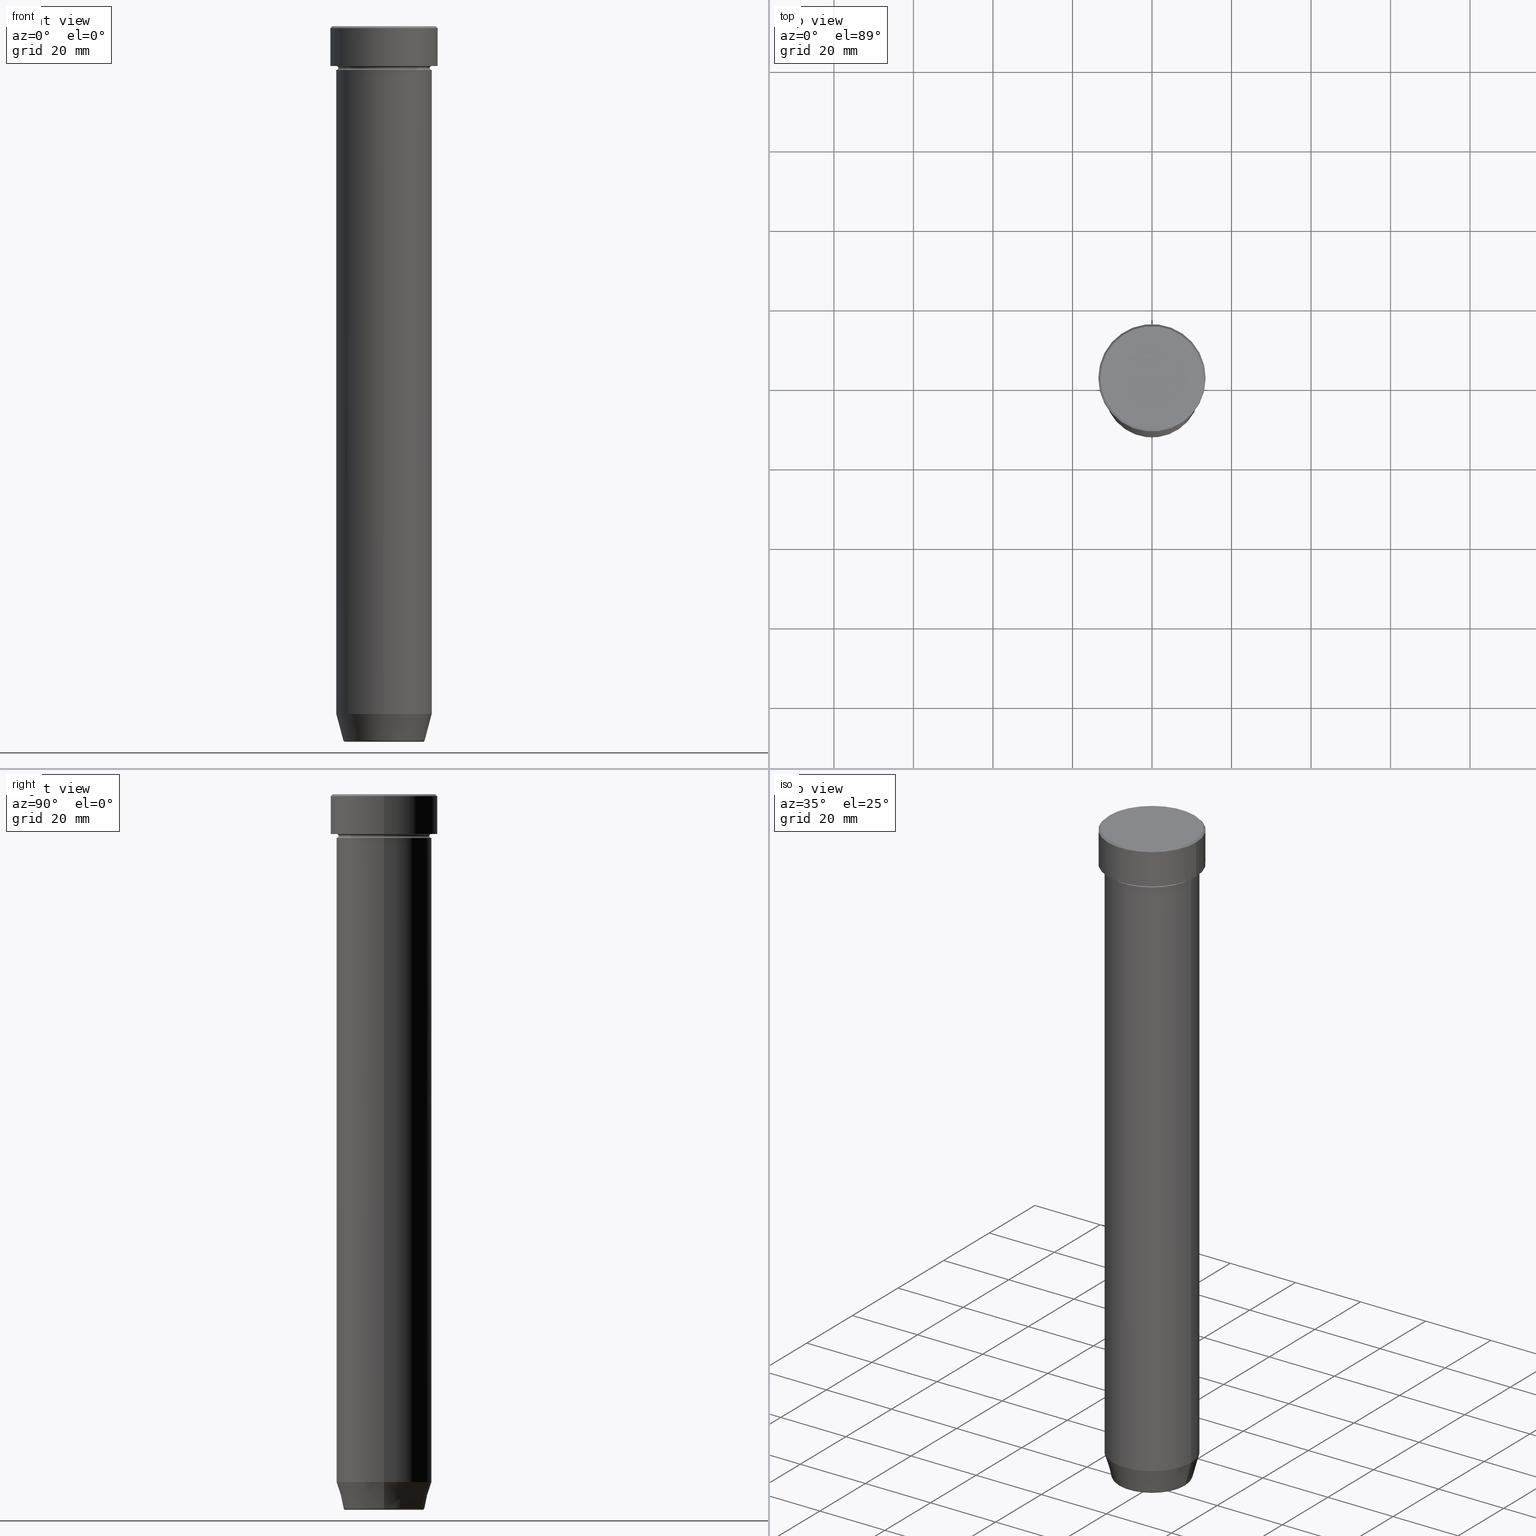
[diagram: canonical four-view strip — front | top / right | iso, engineering-drawing reading convention]
A machine part, canonical four-view strip (front | top / right | iso — engineering-drawing reading convention). The complete STEP part file that produces these views, byte-faithful:
ISO-10303-21;
HEADER;
FILE_DESCRIPTION (( 'STEP AP203' ),
    '1' );
FILE_NAME ('09be.STEP',
    '2024-01-02T19:19:15',
    ( '' ),
    ( '' ),
    'SwSTEP 2.0',
    'SolidWorks 2019',
    '' );
FILE_SCHEMA (( 'CONFIG_CONTROL_DESIGN' ));
ENDSEC;

DATA;
#1 = CALENDAR_DATE ( 2024, 2, 1 ) ;
#2 = VECTOR ( 'NONE', #524, 1000.000000000000000 ) ;
#3 = CIRCLE ( 'NONE', #261, 12.00000000000000000 ) ;
#4 = CIRCLE ( 'NONE', #415, 12.00000000000000000 ) ;
#5 = CALENDAR_DATE ( 2024, 2, 1 ) ;
#6 = PRODUCT ( '09be', '09be', '', ( #533 ) ) ;
#7 = CALENDAR_DATE ( 2024, 2, 1 ) ;
#8 = ORIENTED_EDGE ( 'NONE', *, *, #163, .F. ) ;
#9 = DIRECTION ( 'NONE',  ( 1.000000000000000000, 0.000000000000000000, 0.000000000000000000 ) ) ;
#10 = EDGE_CURVE ( 'NONE', #264, #260, #48, .T. ) ;
#11 = FACE_OUTER_BOUND ( 'NONE', #301, .T. ) ;
#12 = ORIENTED_EDGE ( 'NONE', *, *, #125, .F. ) ;
#13 = AXIS2_PLACEMENT_3D ( 'NONE', #242, #583, #245 ) ;
#14 = APPROVAL_PERSON_ORGANIZATION ( #288, #64, #324 ) ;
#15 = DIRECTION ( 'NONE',  ( 1.000000000000000000, 0.000000000000000000, 0.000000000000000000 ) ) ;
#16 = ADVANCED_FACE ( 'NONE', ( #265 ), #239, .T. ) ;
#17 = DIRECTION ( 'NONE',  ( 1.000000000000000000, 0.000000000000000000, 0.000000000000000000 ) ) ;
#18 = CARTESIAN_POINT ( 'NONE',  ( 0.000000000000000000, 0.000000000000000000, 0.000000000000000000 ) ) ;
#19 = EDGE_LOOP ( 'NONE', ( #67, #237, #356, #523 ) ) ;
#20 = DIRECTION ( 'NONE',  ( 1.000000000000000000, 0.000000000000000000, 0.000000000000000000 ) ) ;
#21 = ORIENTED_EDGE ( 'NONE', *, *, #10, .F. ) ;
#22 =( LENGTH_UNIT ( ) NAMED_UNIT ( * ) SI_UNIT ( .MILLI., .METRE. ) );
#23 = CARTESIAN_POINT ( 'NONE',  ( 0.000000000000000000, 0.000000000000000000, 0.000000000000000000 ) ) ;
#24 = AXIS2_PLACEMENT_3D ( 'NONE', #273, #395, #17 ) ;
#25 = ORIENTED_EDGE ( 'NONE', *, *, #413, .T. ) ;
#26 = AXIS2_PLACEMENT_3D ( 'NONE', #376, #390, #383 ) ;
#27 = DIRECTION ( 'NONE',  ( 1.000000000000000000, 0.000000000000000000, 0.000000000000000000 ) ) ;
#28 = ORIENTED_EDGE ( 'NONE', *, *, #90, .T. ) ;
#29 = EDGE_CURVE ( 'NONE', #521, #260, #471, .T. ) ;
#30 = CARTESIAN_POINT ( 'NONE',  ( 0.000000000000000000, 0.000000000000000000, 0.000000000000000000 ) ) ;
#31 = FACE_OUTER_BOUND ( 'NONE', #497, .T. ) ;
#32 = ORIENTED_EDGE ( 'NONE', *, *, #373, .T. ) ;
#33 = CARTESIAN_POINT ( 'NONE',  ( 0.000000000000000000, 0.000000000000000000, -0.5000000000000091038 ) ) ;
#34 = ORIENTED_EDGE ( 'NONE', *, *, #434, .F. ) ;
#35 = CARTESIAN_POINT ( 'NONE',  ( 12.00000000000000000, 1.469576158976823947E-15, -10.49999999999999822 ) ) ;
#36 = CYLINDRICAL_SURFACE ( 'NONE', #590, 13.50000000000000000 ) ;
#37 = AXIS2_PLACEMENT_3D ( 'NONE', #41, #450, #252 ) ;
#38 = VERTEX_POINT ( 'NONE', #129 ) ;
#39 = TOROIDAL_SURFACE ( 'NONE', #13, 12.00000000000000000, 0.5000000000000000000 ) ;
#40 = ORGANIZATION ( 'NEUR�EN�', 'NEUR�EN�', '' ) ;
#41 = CARTESIAN_POINT ( 'NONE',  ( 0.000000000000000000, 0.000000000000000000, -180.0000000000000000 ) ) ;
#42 = CARTESIAN_POINT ( 'NONE',  ( 9.740692158992656502, 0.000000000000000000, -180.0000000000000000 ) ) ;
#43 = EDGE_CURVE ( 'NONE', #527, #38, #375, .T. ) ;
#44 = CC_DESIGN_PERSON_AND_ORGANIZATION_ASSIGNMENT ( #457, #255, ( #581 ) ) ;
#45 = DIRECTION ( 'NONE',  ( -0.000000000000000000, -0.000000000000000000, 1.000000000000000000 ) ) ;
#46 = CARTESIAN_POINT ( 'NONE',  ( 0.000000000000000000, 0.000000000000000000, -179.6294095225512422 ) ) ;
#47 = EDGE_LOOP ( 'NONE', ( #575, #218, #391, #21 ) ) ;
#48 = CIRCLE ( 'NONE', #154, 12.00000000000000000 ) ;
#49 = AXIS2_PLACEMENT_3D ( 'NONE', #441, #342, #71 ) ;
#50 = AXIS2_PLACEMENT_3D ( 'NONE', #127, #484, #180 ) ;
#51 = CARTESIAN_POINT ( 'NONE',  ( 0.000000000000000000, 0.000000000000000000, -27.00000000000000000 ) ) ;
#52 = EDGE_CURVE ( 'NONE', #430, #196, #567, .T. ) ;
#53 = EDGE_LOOP ( 'NONE', ( #268, #262 ) ) ;
#54 = CALENDAR_DATE ( 2024, 2, 1 ) ;
#55 = DIRECTION ( 'NONE',  ( 0.000000000000000000, 0.000000000000000000, -1.000000000000000000 ) ) ;
#56 = APPROVAL_STATUS ( 'not_yet_approved' ) ;
#57 = DIRECTION ( 'NONE',  ( 1.000000000000000000, 0.000000000000000000, 0.000000000000000000 ) ) ;
#58 = DIRECTION ( 'NONE',  ( -1.000000000000000000, 0.000000000000000000, 0.000000000000000000 ) ) ;
#59 = AXIS2_PLACEMENT_3D ( 'NONE', #73, #221, #344 ) ;
#60 = TOROIDAL_SURFACE ( 'NONE', #197, 12.00000000000000000, 0.5000000000000000000 ) ;
#61 = CARTESIAN_POINT ( 'NONE',  ( 12.00000000000000000, 0.000000000000000000, -27.00000000000000000 ) ) ;
#62 = AXIS2_PLACEMENT_3D ( 'NONE', #139, #489, #307 ) ;
#63 = FACE_OUTER_BOUND ( 'NONE', #295, .T. ) ;
#64 = APPROVAL ( #159, 'NEUR�EN�' ) ;
#65 = ORIENTED_EDGE ( 'NONE', *, *, #597, .T. ) ;
#66 = EDGE_CURVE ( 'NONE', #38, #595, #504, .T. ) ;
#67 = ORIENTED_EDGE ( 'NONE', *, *, #195, .F. ) ;
#68 = CIRCLE ( 'NONE', #37, 9.740692158992656502 ) ;
#69 = AXIS2_PLACEMENT_3D ( 'NONE', #444, #141, #447 ) ;
#70 = AXIS2_PLACEMENT_3D ( 'NONE', #228, #347, #178 ) ;
#71 = DIRECTION ( 'NONE',  ( 1.000000000000000000, 0.000000000000000000, 0.000000000000000000 ) ) ;
#72 = ORIENTED_EDGE ( 'NONE', *, *, #66, .F. ) ;
#73 = CARTESIAN_POINT ( 'NONE',  ( 0.000000000000000000, 0.000000000000000000, -10.49999999999999822 ) ) ;
#74 = ORIENTED_EDGE ( 'NONE', *, *, #585, .T. ) ;
#75 = CARTESIAN_POINT ( 'NONE',  ( 0.000000000000000000, 0.000000000000000000, -10.49999999999999822 ) ) ;
#76 = DIRECTION ( 'NONE',  ( 1.000000000000000000, 0.000000000000000000, 0.000000000000000000 ) ) ;
#77 = CARTESIAN_POINT ( 'NONE',  ( 10.22365507213718416, 0.000000000000000000, -179.6294095225512422 ) ) ;
#78 = EDGE_LOOP ( 'NONE', ( #166, #115, #87, #126 ) ) ;
#79 = VERTEX_POINT ( 'NONE', #177 ) ;
#80 = CARTESIAN_POINT ( 'NONE',  ( 0.000000000000000000, 0.000000000000000000, 0.000000000000000000 ) ) ;
#81 = AXIS2_PLACEMENT_3D ( 'NONE', #162, #512, #58 ) ;
#82 = DIRECTION ( 'NONE',  ( 1.000000000000000000, 0.000000000000000000, 0.000000000000000000 ) ) ;
#83 = LOCAL_TIME ( 20, 19, 15.00000000000000000, #412 ) ;
#84 = VERTEX_POINT ( 'NONE', #226 ) ;
#85 = DIRECTION ( 'NONE',  ( -0.000000000000000000, -1.000000000000000000, -0.000000000000000000 ) ) ;
#86 = FACE_OUTER_BOUND ( 'NONE', #19, .T. ) ;
#87 = ORIENTED_EDGE ( 'NONE', *, *, #66, .T. ) ;
#88 = DIRECTION ( 'NONE',  ( -0.000000000000000000, -0.000000000000000000, 1.000000000000000000 ) ) ;
#89 = ORIENTED_EDGE ( 'NONE', *, *, #562, .F. ) ;
#90 = EDGE_CURVE ( 'NONE', #264, #570, #485, .T. ) ;
#91 = CARTESIAN_POINT ( 'NONE',  ( -12.99999999999999645, 0.000000000000000000, 0.000000000000000000 ) ) ;
#92 = PERSON_AND_ORGANIZATION ( #211, #40 ) ;
#93 = CARTESIAN_POINT ( 'NONE',  ( 0.000000000000000000, 0.000000000000000000, 0.000000000000000000 ) ) ;
#94 = CLOSED_SHELL ( 'NONE', ( #227, #511, #16, #476, #210, #207, #488, #294 ) ) ;
#95 = AXIS2_PLACEMENT_3D ( 'NONE', #360, #501, #539 ) ;
#96 = DIRECTION ( 'NONE',  ( -1.000000000000000000, -1.224646799147353454E-16, 0.000000000000000000 ) ) ;
#97 = LINE ( 'NONE', #248, #175 ) ;
#98 = CARTESIAN_POINT ( 'NONE',  ( -9.740692158992656502, 1.192890747399007864E-15, -179.5000000000000000 ) ) ;
#99 = LINE ( 'NONE', #593, #462 ) ;
#100 = COORDINATED_UNIVERSAL_TIME_OFFSET ( 1, 0, .AHEAD. ) ;
#101 = FACE_BOUND ( 'NONE', #302, .T. ) ;
#102 = DIRECTION ( 'NONE',  ( 0.000000000000000000, -0.000000000000000000, 1.000000000000000000 ) ) ;
#103 = CIRCLE ( 'NONE', #81, 10.22365507213718416 ) ;
#104 = LOCAL_TIME ( 20, 19, 15.00000000000000000, #322 ) ;
#105 = SHAPE_DEFINITION_REPRESENTATION ( #114, #385 ) ;
#106 = CYLINDRICAL_SURFACE ( 'NONE', #551, 12.00000000000000000 ) ;
#107 = EDGE_CURVE ( 'NONE', #297, #442, #308, .T. ) ;
#108 = CARTESIAN_POINT ( 'NONE',  ( 0.000000000000000000, 0.000000000000000000, -179.5000000000000000 ) ) ;
#109 = COORDINATED_UNIVERSAL_TIME_OFFSET ( 1, 0, .AHEAD. ) ;
#110 = ADVANCED_FACE ( 'NONE', ( #184 ), #346, .T. ) ;
#111 = AXIS2_PLACEMENT_3D ( 'NONE', #98, #586, #357 ) ;
#112 = LINE ( 'NONE', #509, #431 ) ;
#113 = LOCAL_TIME ( 20, 19, 15.00000000000000000, #368 ) ;
#114 = PRODUCT_DEFINITION_SHAPE ( 'NONE', 'NONE',  #542 ) ;
#115 = ORIENTED_EDGE ( 'NONE', *, *, #43, .T. ) ;
#116 = CARTESIAN_POINT ( 'NONE',  ( 12.00000000000000000, 0.000000000000000000, -10.49999999999999822 ) ) ;
#117 = ADVANCED_FACE ( 'NONE', ( #577 ), #144, .T. ) ;
#118 = AXIS2_PLACEMENT_3D ( 'NONE', #190, #361, #532 ) ;
#119 = CONICAL_SURFACE ( 'NONE', #276, 12.99999999999999645, 0.7853981633974431720 ) ;
#120 = PRODUCT_DEFINITION_FORMATION_WITH_SPECIFIED_SOURCE ( 'LIBOVOLN�', '', #6, .NOT_KNOWN. ) ;
#121 = FACE_OUTER_BOUND ( 'NONE', #428, .T. ) ;
#122 = VERTEX_POINT ( 'NONE', #199 ) ;
#123 = DIRECTION ( 'NONE',  ( 1.000000000000000000, 0.000000000000000000, 0.000000000000000000 ) ) ;
#124 = CARTESIAN_POINT ( 'NONE',  ( -12.00000000000000000, 0.000000000000000000, -10.49999999999999822 ) ) ;
#125 = EDGE_CURVE ( 'NONE', #442, #297, #68, .T. ) ;
#126 = ORIENTED_EDGE ( 'NONE', *, *, #317, .F. ) ;
#127 = CARTESIAN_POINT ( 'NONE',  ( 0.000000000000000000, 0.000000000000000000, 0.000000000000000000 ) ) ;
#128 = AXIS2_PLACEMENT_3D ( 'NONE', #401, #516, #20 ) ;
#129 = CARTESIAN_POINT ( 'NONE',  ( -11.50000000000000000, 1.438959988998139963E-15, -10.49999999999999822 ) ) ;
#130 = CIRCLE ( 'NONE', #349, 12.00000000000000000 ) ;
#131 = ORIENTED_EDGE ( 'NONE', *, *, #263, .T. ) ;
#132 = EDGE_CURVE ( 'NONE', #437, #430, #544, .T. ) ;
#133 = CARTESIAN_POINT ( 'NONE',  ( -10.22365507213718416, 1.360806402472382153E-15, -179.6294095225512422 ) ) ;
#134 = EDGE_LOOP ( 'NONE', ( #565, #473, #171, #89 ) ) ;
#135 = LINE ( 'NONE', #306, #320 ) ;
#136 = DATE_AND_TIME ( #531, #283 ) ;
#137 = CC_DESIGN_PERSON_AND_ORGANIZATION_ASSIGNMENT ( #592, #153, ( #120 ) ) ;
#138 = CARTESIAN_POINT ( 'NONE',  ( 0.000000000000000000, 0.000000000000000000, -27.00000000000000000 ) ) ;
#139 = CARTESIAN_POINT ( 'NONE',  ( 0.000000000000000000, 0.000000000000000000, 0.000000000000000000 ) ) ;
#140 = ORIENTED_EDGE ( 'NONE', *, *, #132, .F. ) ;
#141 = DIRECTION ( 'NONE',  ( -0.000000000000000000, -0.000000000000000000, 1.000000000000000000 ) ) ;
#142 = DIRECTION ( 'NONE',  ( -0.000000000000000000, -0.000000000000000000, 1.000000000000000000 ) ) ;
#143 = CARTESIAN_POINT ( 'NONE',  ( -12.00000000000000000, 0.000000000000000000, -9.999999999999998224 ) ) ;
#144 = CONICAL_SURFACE ( 'NONE', #549, 12.99999999999999645, 0.7853981633974431720 ) ;
#145 = APPLICATION_CONTEXT ( 'configuration controlled 3d designs of mechanical parts and assemblies' ) ;
#146 = AXIS2_PLACEMENT_3D ( 'NONE', #464, #369, #466 ) ;
#147 = CARTESIAN_POINT ( 'NONE',  ( -10.12435565298213369, 1.239875974385398152E-15, -180.0000000000000000 ) ) ;
#148 = DIRECTION ( 'NONE',  ( -0.000000000000000000, -0.000000000000000000, 1.000000000000000000 ) ) ;
#149 = CARTESIAN_POINT ( 'NONE',  ( -12.99999999999999645, 0.000000000000000000, 0.000000000000000000 ) ) ;
#150 = FACE_OUTER_BOUND ( 'NONE', #204, .T. ) ;
#151 = DIRECTION ( 'NONE',  ( 1.000000000000000000, 0.000000000000000000, 0.000000000000000000 ) ) ;
#152 = VERTEX_POINT ( 'NONE', #315 ) ;
#153 = PERSON_AND_ORGANIZATION_ROLE ( 'creator' ) ;
#154 = AXIS2_PLACEMENT_3D ( 'NONE', #158, #148, #456 ) ;
#155 = AXIS2_PLACEMENT_3D ( 'NONE', #459, #292, #465 ) ;
#156 = DIRECTION ( 'NONE',  ( 1.000000000000000000, 0.000000000000000000, 0.000000000000000000 ) ) ;
#157 = ADVANCED_FACE ( 'NONE', ( #101, #281 ), #354, .T. ) ;
#158 = CARTESIAN_POINT ( 'NONE',  ( 0.000000000000000000, 0.000000000000000000, -173.0000000000000000 ) ) ;
#159 = APPROVAL_STATUS ( 'not_yet_approved' ) ;
#160 = EDGE_LOOP ( 'NONE', ( #426, #335 ) ) ;
#161 = CONICAL_SURFACE ( 'NONE', #26, 10.12435565298213369, 0.2617993877991502405 ) ;
#162 = CARTESIAN_POINT ( 'NONE',  ( 0.000000000000000000, 0.000000000000000000, -179.6294095225512422 ) ) ;
#163 = EDGE_CURVE ( 'NONE', #122, #234, #336, .T. ) ;
#164 = CARTESIAN_POINT ( 'NONE',  ( 0.000000000000000000, 0.000000000000000000, -27.00000000000000000 ) ) ;
#165 = DIRECTION ( 'NONE',  ( -1.000000000000000000, 0.000000000000000000, 0.000000000000000000 ) ) ;
#166 = ORIENTED_EDGE ( 'NONE', *, *, #422, .F. ) ;
#167 = PERSON_AND_ORGANIZATION_ROLE ( 'creator' ) ;
#168 = DIRECTION ( 'NONE',  ( -1.000000000000000000, 0.000000000000000000, 0.000000000000000000 ) ) ;
#169 = MANIFOLD_SOLID_BREP ( 'Zkosen�1', #186 ) ;
#170 = CARTESIAN_POINT ( 'NONE',  ( 0.000000000000000000, 0.000000000000000000, -27.00000000000000000 ) ) ;
#171 = ORIENTED_EDGE ( 'NONE', *, *, #132, .T. ) ;
#172 = MANIFOLD_SOLID_BREP ( 'Zaoblit4', #94 ) ;
#173 = ORIENTED_EDGE ( 'NONE', *, *, #353, .T. ) ;
#174 = AXIS2_PLACEMENT_3D ( 'NONE', #80, #271, #433 ) ;
#175 = VECTOR ( 'NONE', #45, 1000.000000000000000 ) ;
#176 = EDGE_CURVE ( 'NONE', #394, #570, #214, .T. ) ;
#177 = CARTESIAN_POINT ( 'NONE',  ( 12.00000000000000000, 1.469576158976823947E-15, -9.999999999999998224 ) ) ;
#178 = DIRECTION ( 'NONE',  ( 0.000000000000000000, 0.000000000000000000, -1.000000000000000000 ) ) ;
#179 = APPLICATION_CONTEXT ( 'configuration controlled 3d designs of mechanical parts and assemblies' ) ;
#180 = DIRECTION ( 'NONE',  ( 1.000000000000000000, 0.000000000000000000, 0.000000000000000000 ) ) ;
#181 = ADVANCED_FACE ( 'NONE', ( #496 ), #39, .F. ) ;
#182 = EDGE_LOOP ( 'NONE', ( #280, #74, #522, #140 ) ) ;
#183 = ADVANCED_FACE ( 'NONE', ( #150 ), #60, .F. ) ;
#184 = FACE_OUTER_BOUND ( 'NONE', #160, .T. ) ;
#185 = CARTESIAN_POINT ( 'NONE',  ( 11.50000000000000000, 0.000000000000000000, -10.49999999999999822 ) ) ;
#186 = CLOSED_SHELL ( 'NONE', ( #474, #443, #183, #458, #543, #330, #110, #528, #157, #370, #181, #449, #117 ) ) ;
#187 = TOROIDAL_SURFACE ( 'NONE', #24, 9.740692158992656502, 0.5000000000000000000 ) ;
#188 = CIRCLE ( 'NONE', #62, 12.99999999999999645 ) ;
#189 = DIRECTION ( 'NONE',  ( -0.2588190451025214611, 3.169619151431774186E-17, 0.9659258262890679791 ) ) ;
#190 = CARTESIAN_POINT ( 'NONE',  ( 0.000000000000000000, 13.50000000000000000, -9.999999999999998224 ) ) ;
#191 = UNCERTAINTY_MEASURE_WITH_UNIT (LENGTH_MEASURE( 1.000000000000000082E-05 ), #22, 'distance_accuracy_value', 'NONE');
#192 = EDGE_LOOP ( 'NONE', ( #463, #304 ) ) ;
#193 = CARTESIAN_POINT ( 'NONE',  ( -13.50000000000000000, 1.653273178848926867E-15, -0.5000000000000091038 ) ) ;
#194 = LINE ( 'NONE', #208, #339 ) ;
#195 = EDGE_CURVE ( 'NONE', #152, #430, #97, .T. ) ;
#196 = VERTEX_POINT ( 'NONE', #244 ) ;
#197 = AXIS2_PLACEMENT_3D ( 'NONE', #534, #142, #309 ) ;
#198 =( GEOMETRIC_REPRESENTATION_CONTEXT ( 3 ) GLOBAL_UNCERTAINTY_ASSIGNED_CONTEXT ( ( #191 ) ) GLOBAL_UNIT_ASSIGNED_CONTEXT ( ( #22, #220, #298 ) ) REPRESENTATION_CONTEXT ( 'NONE', 'WORKASPACE' ) );
#199 = CARTESIAN_POINT ( 'NONE',  ( -12.00000000000000000, 1.469576158976823947E-15, -27.00000000000000000 ) ) ;
#200 = ORIENTED_EDGE ( 'NONE', *, *, #107, .T. ) ;
#201 = EDGE_CURVE ( 'NONE', #297, #519, #569, .T. ) ;
#202 = PERSON_AND_ORGANIZATION ( #211, #40 ) ;
#203 = FACE_OUTER_BOUND ( 'NONE', #213, .T. ) ;
#204 = EDGE_LOOP ( 'NONE', ( #384, #254, #416, #477 ) ) ;
#205 = APPROVAL_ROLE ( '' ) ;
#206 = FACE_OUTER_BOUND ( 'NONE', #314, .T. ) ;
#207 = ADVANCED_FACE ( 'NONE', ( #405 ), #525, .T. ) ;
#208 = CARTESIAN_POINT ( 'NONE',  ( 12.99999999999999645, 1.592040838891558701E-15, 0.000000000000000000 ) ) ;
#209 = AXIS2_PLACEMENT_3D ( 'NONE', #409, #102, #598 ) ;
#210 = ADVANCED_FACE ( 'NONE', ( #203 ), #507, .T. ) ;
#211 = PERSON ( 'NEUR�EN�', 'NEUR�EN�', 'NEUR�EN�', ('NEUR�EN�'), ('NEUR�EN�'), ('NEUR�EN�') ) ;
#212 = CARTESIAN_POINT ( 'NONE',  ( 12.00000000000000000, 0.000000000000000000, -11.00000000000000000 ) ) ;
#213 = EDGE_LOOP ( 'NONE', ( #241, #576, #173, #396 ) ) ;
#214 = CIRCLE ( 'NONE', #423, 12.00000000000000000 ) ;
#215 = AXIS2_PLACEMENT_3D ( 'NONE', #404, #455, #57 ) ;
#216 = CARTESIAN_POINT ( 'NONE',  ( -9.740692158992656502, 1.222463696683474604E-15, -180.0000000000000000 ) ) ;
#217 = PLANE ( 'NONE',  #367 ) ;
#218 = ORIENTED_EDGE ( 'NONE', *, *, #266, .T. ) ;
#219 = EDGE_LOOP ( 'NONE', ( #272, #28, #374, #470 ) ) ;
#220 =( NAMED_UNIT ( * ) PLANE_ANGLE_UNIT ( ) SI_UNIT ( $, .RADIAN. ) );
#221 = DIRECTION ( 'NONE',  ( -0.000000000000000000, -0.000000000000000000, 1.000000000000000000 ) ) ;
#222 = ORIENTED_EDGE ( 'NONE', *, *, #107, .F. ) ;
#223 = ORIENTED_EDGE ( 'NONE', *, *, #29, .F. ) ;
#224 = PRODUCT_RELATED_PRODUCT_CATEGORY ( 'detail', '', ( #6 ) ) ;
#225 = CIRCLE ( 'NONE', #517, 12.99999999999999645 ) ;
#226 = CARTESIAN_POINT ( 'NONE',  ( 12.99999999999999645, 1.622657008870242882E-15, 0.000000000000000000 ) ) ;
#227 = ADVANCED_FACE ( 'NONE', ( #325 ), #480, .T. ) ;
#228 = CARTESIAN_POINT ( 'NONE',  ( 9.740692158992656502, 0.000000000000000000, -179.5000000000000000 ) ) ;
#229 = ORIENTED_EDGE ( 'NONE', *, *, #279, .T. ) ;
#230 = LINE ( 'NONE', #574, #445 ) ;
#231 = ORIENTED_EDGE ( 'NONE', *, *, #195, .T. ) ;
#232 = DIRECTION ( 'NONE',  ( 0.000000000000000000, 0.000000000000000000, -1.000000000000000000 ) ) ;
#233 = ORIENTED_EDGE ( 'NONE', *, *, #417, .T. ) ;
#234 = VERTEX_POINT ( 'NONE', #61 ) ;
#235 = DIRECTION ( 'NONE',  ( 0.000000000000000000, 0.000000000000000000, -1.000000000000000000 ) ) ;
#236 = DIRECTION ( 'NONE',  ( -0.000000000000000000, -0.000000000000000000, 1.000000000000000000 ) ) ;
#237 = ORIENTED_EDGE ( 'NONE', *, *, #568, .T. ) ;
#238 = CARTESIAN_POINT ( 'NONE',  ( 0.000000000000000000, 0.000000000000000000, -11.00000000000000000 ) ) ;
#239 = CYLINDRICAL_SURFACE ( 'NONE', #128, 12.00000000000000000 ) ;
#240 = CIRCLE ( 'NONE', #377, 0.5000000000000004441 ) ;
#241 = ORIENTED_EDGE ( 'NONE', *, *, #90, .F. ) ;
#242 = CARTESIAN_POINT ( 'NONE',  ( 0.000000000000000000, 0.000000000000000000, -10.49999999999999822 ) ) ;
#243 = DESIGN_CONTEXT ( 'detailed design', #179, 'design' ) ;
#244 = CARTESIAN_POINT ( 'NONE',  ( 13.50000000000000000, 0.000000000000000000, -0.5000000000000091038 ) ) ;
#245 = DIRECTION ( 'NONE',  ( 1.000000000000000000, 0.000000000000000000, 0.000000000000000000 ) ) ;
#246 = CC_DESIGN_PERSON_AND_ORGANIZATION_ASSIGNMENT ( #202, #316, ( #120 ) ) ;
#247 = AXIS2_PLACEMENT_3D ( 'NONE', #33, #340, #151 ) ;
#248 = CARTESIAN_POINT ( 'NONE',  ( -13.50000000000000000, 1.653273178848926867E-15, 0.000000000000000000 ) ) ;
#249 = EDGE_LOOP ( 'NONE', ( #222, #564, #305, #407 ) ) ;
#250 = DATE_AND_TIME ( #54, #104 ) ;
#251 = APPROVAL_ROLE ( '' ) ;
#252 = DIRECTION ( 'NONE',  ( 1.000000000000000000, 0.000000000000000000, 0.000000000000000000 ) ) ;
#253 = CARTESIAN_POINT ( 'NONE',  ( -12.00000000000000000, 1.469576158976823947E-15, -27.00000000000000000 ) ) ;
#254 = ORIENTED_EDGE ( 'NONE', *, *, #461, .T. ) ;
#255 = PERSON_AND_ORGANIZATION_ROLE ( 'classification_officer' ) ;
#256 = APPROVAL ( #596, 'NEUR�EN�' ) ;
#257 = DIRECTION ( 'NONE',  ( 0.000000000000000000, 0.000000000000000000, -1.000000000000000000 ) ) ;
#258 = CIRCLE ( 'NONE', #505, 11.50000000000000000 ) ;
#259 = DIRECTION ( 'NONE',  ( -1.000000000000000000, 0.000000000000000000, -0.000000000000000000 ) ) ;
#260 = VERTEX_POINT ( 'NONE', #559 ) ;
#261 = AXIS2_PLACEMENT_3D ( 'NONE', #238, #352, #530 ) ;
#262 = ORIENTED_EDGE ( 'NONE', *, *, #568, .F. ) ;
#263 = EDGE_CURVE ( 'NONE', #234, #122, #130, .T. ) ;
#264 = VERTEX_POINT ( 'NONE', #331 ) ;
#265 = FACE_OUTER_BOUND ( 'NONE', #219, .T. ) ;
#266 = EDGE_CURVE ( 'NONE', #519, #521, #103, .T. ) ;
#267 = ORIENTED_EDGE ( 'NONE', *, *, #278, .T. ) ;
#268 = ORIENTED_EDGE ( 'NONE', *, *, #290, .F. ) ;
#269 = VECTOR ( 'NONE', #189, 1000.000000000000114 ) ;
#270 = CIRCLE ( 'NONE', #146, 13.50000000000000000 ) ;
#271 = DIRECTION ( 'NONE',  ( 0.000000000000000000, -0.000000000000000000, 1.000000000000000000 ) ) ;
#272 = ORIENTED_EDGE ( 'NONE', *, *, #438, .T. ) ;
#273 = CARTESIAN_POINT ( 'NONE',  ( 0.000000000000000000, 0.000000000000000000, -179.5000000000000000 ) ) ;
#274 = CYLINDRICAL_SURFACE ( 'NONE', #49, 12.00000000000000000 ) ;
#275 = DIRECTION ( 'NONE',  ( -1.224646799147353207E-16, 1.000000000000000000, 0.000000000000000000 ) ) ;
#276 = AXIS2_PLACEMENT_3D ( 'NONE', #18, #55, #165 ) ;
#277 = DIRECTION ( 'NONE',  ( -0.000000000000000000, -0.000000000000000000, 1.000000000000000000 ) ) ;
#278 = EDGE_CURVE ( 'NONE', #527, #482, #510, .T. ) ;
#279 = EDGE_CURVE ( 'NONE', #234, #482, #112, .T. ) ;
#280 = ORIENTED_EDGE ( 'NONE', *, *, #536, .F. ) ;
#281 = FACE_OUTER_BOUND ( 'NONE', #53, .T. ) ;
#282 = AXIS2_PLACEMENT_3D ( 'NONE', #371, #514, #554 ) ;
#283 = LOCAL_TIME ( 20, 19, 15.00000000000000000, #100 ) ;
#284 = DATE_TIME_ROLE ( 'classification_date' ) ;
#285 = FACE_OUTER_BOUND ( 'NONE', #78, .T. ) ;
#286 = DIRECTION ( 'NONE',  ( -1.000000000000000000, 0.000000000000000000, 0.000000000000000000 ) ) ;
#287 = DATE_TIME_ROLE ( 'creation_date' ) ;
#288 = PERSON_AND_ORGANIZATION ( #211, #40 ) ;
#289 = CIRCLE ( 'NONE', #310, 12.00000000000000000 ) ;
#290 = EDGE_CURVE ( 'NONE', #573, #152, #270, .T. ) ;
#291 = DIRECTION ( 'NONE',  ( -0.000000000000000000, -0.000000000000000000, 1.000000000000000000 ) ) ;
#292 = DIRECTION ( 'NONE',  ( 0.000000000000000000, 0.000000000000000000, -1.000000000000000000 ) ) ;
#293 = DIRECTION ( 'NONE',  ( 0.000000000000000000, -1.000000000000000000, 0.000000000000000000 ) ) ;
#294 = ADVANCED_FACE ( 'NONE', ( #63 ), #187, .T. ) ;
#295 = EDGE_LOOP ( 'NONE', ( #420, #12, #436, #529 ) ) ;
#296 = DIRECTION ( 'NONE',  ( -1.000000000000000000, 1.224646799147353454E-16, 0.000000000000000000 ) ) ;
#297 = VERTEX_POINT ( 'NONE', #216 ) ;
#298 =( NAMED_UNIT ( * ) SI_UNIT ( $, .STERADIAN. ) SOLID_ANGLE_UNIT ( ) );
#299 = DIRECTION ( 'NONE',  ( 0.000000000000000000, 0.000000000000000000, -1.000000000000000000 ) ) ;
#300 = CARTESIAN_POINT ( 'NONE',  ( 12.00000000000000000, 0.000000000000000000, -27.00000000000000000 ) ) ;
#301 = EDGE_LOOP ( 'NONE', ( #65, #25, #556, #223 ) ) ;
#302 = EDGE_LOOP ( 'NONE', ( #233, #490 ) ) ;
#303 = AXIS2_PLACEMENT_3D ( 'NONE', #108, #460, #156 ) ;
#304 = ORIENTED_EDGE ( 'NONE', *, *, #582, .T. ) ;
#305 = ORIENTED_EDGE ( 'NONE', *, *, #597, .F. ) ;
#306 = CARTESIAN_POINT ( 'NONE',  ( 13.50000000000000000, 0.000000000000000000, 0.000000000000000000 ) ) ;
#307 = DIRECTION ( 'NONE',  ( 1.000000000000000000, 0.000000000000000000, 0.000000000000000000 ) ) ;
#308 = CIRCLE ( 'NONE', #319, 9.740692158992656502 ) ;
#309 = DIRECTION ( 'NONE',  ( 1.000000000000000000, 0.000000000000000000, 0.000000000000000000 ) ) ;
#310 = AXIS2_PLACEMENT_3D ( 'NONE', #571, #520, #27 ) ;
#311 = DIRECTION ( 'NONE',  ( -1.000000000000000000, 0.000000000000000000, 0.000000000000000000 ) ) ;
#312 = ORIENTED_EDGE ( 'NONE', *, *, #163, .T. ) ;
#313 = LINE ( 'NONE', #147, #269 ) ;
#314 = EDGE_LOOP ( 'NONE', ( #359, #200 ) ) ;
#315 = CARTESIAN_POINT ( 'NONE',  ( -13.50000000000000000, 1.653273178848926867E-15, -10.00000000000000000 ) ) ;
#316 = PERSON_AND_ORGANIZATION_ROLE ( 'design_supplier' ) ;
#317 = EDGE_CURVE ( 'NONE', #79, #595, #494, .T. ) ;
#318 = DIRECTION ( 'NONE',  ( -0.000000000000000000, -0.000000000000000000, 1.000000000000000000 ) ) ;
#319 = AXIS2_PLACEMENT_3D ( 'NONE', #572, #235, #479 ) ;
#320 = VECTOR ( 'NONE', #491, 1000.000000000000000 ) ;
#321 = EDGE_LOOP ( 'NONE', ( #553, #348, #343, #72 ) ) ;
#322 = COORDINATED_UNIVERSAL_TIME_OFFSET ( 1, 0, .AHEAD. ) ;
#323 = DIRECTION ( 'NONE',  ( -0.000000000000000000, -0.000000000000000000, 1.000000000000000000 ) ) ;
#324 = APPROVAL_ROLE ( '' ) ;
#325 = FACE_OUTER_BOUND ( 'NONE', #249, .T. ) ;
#326 = DATE_AND_TIME ( #7, #506 ) ;
#327 = APPROVAL_DATE_TIME ( #362, #256 ) ;
#328 = AXIS2_PLACEMENT_3D ( 'NONE', #365, #467, #381 ) ;
#329 = CIRCLE ( 'NONE', #379, 10.22365507213718416 ) ;
#330 = ADVANCED_FACE ( 'NONE', ( #515 ), #547, .T. ) ;
#331 = CARTESIAN_POINT ( 'NONE',  ( -12.00000000000000000, 1.469576158976823947E-15, -173.0000000000000000 ) ) ;
#332 = FACE_OUTER_BOUND ( 'NONE', #192, .T. ) ;
#333 = ORIENTED_EDGE ( 'NONE', *, *, #290, .T. ) ;
#334 = DIRECTION ( 'NONE',  ( -0.000000000000000000, -0.000000000000000000, 1.000000000000000000 ) ) ;
#335 = ORIENTED_EDGE ( 'NONE', *, *, #536, .T. ) ;
#336 = CIRCLE ( 'NONE', #468, 12.00000000000000000 ) ;
#337 = AXIS2_PLACEMENT_3D ( 'NONE', #116, #293, #257 ) ;
#338 = ORIENTED_EDGE ( 'NONE', *, *, #52, .T. ) ;
#339 = VECTOR ( 'NONE', #552, 1000.000000000000000 ) ;
#340 = DIRECTION ( 'NONE',  ( 0.000000000000000000, 0.000000000000000000, -1.000000000000000000 ) ) ;
#341 = ORIENTED_EDGE ( 'NONE', *, *, #461, .F. ) ;
#342 = DIRECTION ( 'NONE',  ( -0.000000000000000000, -0.000000000000000000, 1.000000000000000000 ) ) ;
#343 = ORIENTED_EDGE ( 'NONE', *, *, #417, .F. ) ;
#344 = DIRECTION ( 'NONE',  ( 1.000000000000000000, 0.000000000000000000, 0.000000000000000000 ) ) ;
#345 = ORIENTED_EDGE ( 'NONE', *, *, #373, .F. ) ;
#346 = PLANE ( 'NONE',  #174 ) ;
#347 = DIRECTION ( 'NONE',  ( 0.000000000000000000, -1.000000000000000000, 0.000000000000000000 ) ) ;
#348 = ORIENTED_EDGE ( 'NONE', *, *, #422, .T. ) ;
#349 = AXIS2_PLACEMENT_3D ( 'NONE', #164, #557, #9 ) ;
#350 = CC_DESIGN_APPROVAL ( #64, ( #120 ) ) ;
#351 = ORIENTED_EDGE ( 'NONE', *, *, #429, .F. ) ;
#352 = DIRECTION ( 'NONE',  ( -0.000000000000000000, -0.000000000000000000, 1.000000000000000000 ) ) ;
#353 = EDGE_CURVE ( 'NONE', #260, #394, #99, .T. ) ;
#354 = PLANE ( 'NONE',  #118 ) ;
#355 = CC_DESIGN_PERSON_AND_ORGANIZATION_ASSIGNMENT ( #495, #454, ( #6 ) ) ;
#356 = ORIENTED_EDGE ( 'NONE', *, *, #434, .T. ) ;
#357 = DIRECTION ( 'NONE',  ( -1.000000000000000000, 1.224646799147353454E-16, 0.000000000000000000 ) ) ;
#358 = CIRCLE ( 'NONE', #588, 0.5000000000000004441 ) ;
#359 = ORIENTED_EDGE ( 'NONE', *, *, #125, .T. ) ;
#360 = CARTESIAN_POINT ( 'NONE',  ( 0.000000000000000000, 12.00000000000000000, -27.00000000000000000 ) ) ;
#361 = DIRECTION ( 'NONE',  ( 0.000000000000000000, 0.000000000000000000, -1.000000000000000000 ) ) ;
#362 = DATE_AND_TIME ( #1, #83 ) ;
#363 = FACE_OUTER_BOUND ( 'NONE', #386, .T. ) ;
#364 = DIRECTION ( 'NONE',  ( 1.000000000000000000, 0.000000000000000000, 0.000000000000000000 ) ) ;
#365 = CARTESIAN_POINT ( 'NONE',  ( 0.000000000000000000, 0.000000000000000000, -10.49999999999999822 ) ) ;
#366 = VECTOR ( 'NONE', #410, 1000.000000000000000 ) ;
#367 = AXIS2_PLACEMENT_3D ( 'NONE', #170, #472, #259 ) ;
#368 = COORDINATED_UNIVERSAL_TIME_OFFSET ( 1, 0, .AHEAD. ) ;
#369 = DIRECTION ( 'NONE',  ( -0.000000000000000000, -0.000000000000000000, 1.000000000000000000 ) ) ;
#370 = ADVANCED_FACE ( 'NONE', ( #363 ), #274, .T. ) ;
#371 = CARTESIAN_POINT ( 'NONE',  ( 0.000000000000000000, 0.000000000000000000, 0.000000000000000000 ) ) ;
#372 = EDGE_CURVE ( 'NONE', #38, #527, #258, .T. ) ;
#373 = EDGE_CURVE ( 'NONE', #482, #493, #289, .T. ) ;
#374 = ORIENTED_EDGE ( 'NONE', *, *, #176, .F. ) ;
#375 = CIRCLE ( 'NONE', #59, 11.50000000000000000 ) ;
#376 = CARTESIAN_POINT ( 'NONE',  ( 0.000000000000000000, 0.000000000000000000, -180.0000000000000000 ) ) ;
#377 = AXIS2_PLACEMENT_3D ( 'NONE', #545, #425, #296 ) ;
#378 = EDGE_LOOP ( 'NONE', ( #341, #418, #267, #32 ) ) ;
#379 = AXIS2_PLACEMENT_3D ( 'NONE', #46, #323, #311 ) ;
#380 = DIRECTION ( 'NONE',  ( -0.000000000000000000, -0.000000000000000000, 1.000000000000000000 ) ) ;
#381 = DIRECTION ( 'NONE',  ( -1.000000000000000000, 0.000000000000000000, 0.000000000000000000 ) ) ;
#382 = CARTESIAN_POINT ( 'NONE',  ( 0.000000000000000000, 0.000000000000000000, -0.5000000000000091038 ) ) ;
#383 = DIRECTION ( 'NONE',  ( 1.000000000000000000, 0.000000000000000000, 0.000000000000000000 ) ) ;
#384 = ORIENTED_EDGE ( 'NONE', *, *, #372, .F. ) ;
#385 = ADVANCED_BREP_SHAPE_REPRESENTATION ( '09be', ( #169, #172, #50 ), #198 ) ;
#386 = EDGE_LOOP ( 'NONE', ( #432, #312, #229, #351 ) ) ;
#387 = APPLICATION_PROTOCOL_DEFINITION ( 'international standard', 'config_control_design', 1994, #145 ) ;
#388 = EDGE_CURVE ( 'NONE', #437, #84, #225, .T. ) ;
#389 = CARTESIAN_POINT ( 'NONE',  ( -12.00000000000000000, 1.469576158976823947E-15, 0.000000000000000000 ) ) ;
#390 = DIRECTION ( 'NONE',  ( -0.000000000000000000, -0.000000000000000000, 1.000000000000000000 ) ) ;
#391 = ORIENTED_EDGE ( 'NONE', *, *, #29, .T. ) ;
#392 = CARTESIAN_POINT ( 'NONE',  ( 10.12435565298213369, 0.000000000000000000, -180.0000000000000000 ) ) ;
#393 = CC_DESIGN_DATE_AND_TIME_ASSIGNMENT ( #250, #284, ( #581 ) ) ;
#394 = VERTEX_POINT ( 'NONE', #300 ) ;
#395 = DIRECTION ( 'NONE',  ( -0.000000000000000000, -0.000000000000000000, 1.000000000000000000 ) ) ;
#396 = ORIENTED_EDGE ( 'NONE', *, *, #582, .F. ) ;
#397 = EDGE_CURVE ( 'NONE', #122, #493, #230, .T. ) ;
#398 = TOROIDAL_SURFACE ( 'NONE', #328, 12.00000000000000000, 0.5000000000000000000 ) ;
#399 = DIRECTION ( 'NONE',  ( -0.000000000000000000, -0.000000000000000000, 1.000000000000000000 ) ) ;
#400 = CIRCLE ( 'NONE', #247, 13.50000000000000000 ) ;
#401 = CARTESIAN_POINT ( 'NONE',  ( 0.000000000000000000, 0.000000000000000000, 0.000000000000000000 ) ) ;
#402 = DIRECTION ( 'NONE',  ( 1.000000000000000000, 0.000000000000000000, 0.000000000000000000 ) ) ;
#403 = APPLICATION_PROTOCOL_DEFINITION ( 'international standard', 'config_control_design', 1994, #179 ) ;
#404 = CARTESIAN_POINT ( 'NONE',  ( 0.000000000000000000, 0.000000000000000000, -10.00000000000000000 ) ) ;
#405 = FACE_OUTER_BOUND ( 'NONE', #47, .T. ) ;
#406 = CARTESIAN_POINT ( 'NONE',  ( 0.000000000000000000, 0.000000000000000000, -180.0000000000000000 ) ) ;
#407 = ORIENTED_EDGE ( 'NONE', *, *, #546, .F. ) ;
#408 = PERSON_AND_ORGANIZATION ( #211, #40 ) ;
#409 = CARTESIAN_POINT ( 'NONE',  ( 0.000000000000000000, 1.592040838891559450E-14, -180.0000000000000000 ) ) ;
#410 = DIRECTION ( 'NONE',  ( -0.7071067811865439090, 0.000000000000000000, -0.7071067811865512365 ) ) ;
#411 = CARTESIAN_POINT ( 'NONE',  ( 13.50000000000000000, 0.000000000000000000, -10.00000000000000000 ) ) ;
#412 = COORDINATED_UNIVERSAL_TIME_OFFSET ( 1, 0, .AHEAD. ) ;
#413 = EDGE_CURVE ( 'NONE', #519, #264, #313, .T. ) ;
#414 = TOROIDAL_SURFACE ( 'NONE', #155, 12.00000000000000000, 0.5000000000000000000 ) ;
#415 = AXIS2_PLACEMENT_3D ( 'NONE', #584, #535, #599 ) ;
#416 = ORIENTED_EDGE ( 'NONE', *, *, #429, .T. ) ;
#417 = EDGE_CURVE ( 'NONE', #595, #79, #580, .T. ) ;
#418 = ORIENTED_EDGE ( 'NONE', *, *, #43, .F. ) ;
#419 = CARTESIAN_POINT ( 'NONE',  ( -12.00000000000000000, 1.469576158976823947E-15, -11.00000000000000000 ) ) ;
#420 = ORIENTED_EDGE ( 'NONE', *, *, #201, .F. ) ;
#421 = FACE_OUTER_BOUND ( 'NONE', #182, .T. ) ;
#422 = EDGE_CURVE ( 'NONE', #527, #79, #358, .T. ) ;
#423 = AXIS2_PLACEMENT_3D ( 'NONE', #51, #499, #364 ) ;
#424 = CC_DESIGN_APPROVAL ( #478, ( #542 ) ) ;
#425 = DIRECTION ( 'NONE',  ( 1.224646799147353207E-16, 1.000000000000000000, 0.000000000000000000 ) ) ;
#426 = ORIENTED_EDGE ( 'NONE', *, *, #388, .T. ) ;
#427 = DIRECTION ( 'NONE',  ( 1.000000000000000000, 0.000000000000000000, 0.000000000000000000 ) ) ;
#428 = EDGE_LOOP ( 'NONE', ( #131, #560, #345, #439 ) ) ;
#429 = EDGE_CURVE ( 'NONE', #493, #482, #3, .T. ) ;
#430 = VERTEX_POINT ( 'NONE', #193 ) ;
#431 = VECTOR ( 'NONE', #291, 1000.000000000000000 ) ;
#432 = ORIENTED_EDGE ( 'NONE', *, *, #397, .F. ) ;
#433 = DIRECTION ( 'NONE',  ( 1.000000000000000000, 0.000000000000000000, 0.000000000000000000 ) ) ;
#434 = EDGE_CURVE ( 'NONE', #573, #196, #135, .T. ) ;
#435 = CYLINDRICAL_SURFACE ( 'NONE', #469, 13.50000000000000000 ) ;
#436 = ORIENTED_EDGE ( 'NONE', *, *, #546, .T. ) ;
#437 = VERTEX_POINT ( 'NONE', #91 ) ;
#438 = EDGE_CURVE ( 'NONE', #260, #264, #452, .T. ) ;
#439 = ORIENTED_EDGE ( 'NONE', *, *, #279, .F. ) ;
#440 = DIRECTION ( 'NONE',  ( -1.000000000000000000, 0.000000000000000000, 0.000000000000000000 ) ) ;
#441 = CARTESIAN_POINT ( 'NONE',  ( 0.000000000000000000, 0.000000000000000000, 0.000000000000000000 ) ) ;
#442 = VERTEX_POINT ( 'NONE', #42 ) ;
#443 = ADVANCED_FACE ( 'NONE', ( #498 ), #398, .F. ) ;
#444 = CARTESIAN_POINT ( 'NONE',  ( 0.000000000000000000, 0.000000000000000000, -173.0000000000000000 ) ) ;
#445 = VECTOR ( 'NONE', #537, 1000.000000000000000 ) ;
#446 = APPROVAL_PERSON_ORGANIZATION ( #408, #256, #205 ) ;
#447 = DIRECTION ( 'NONE',  ( 1.000000000000000000, 0.000000000000000000, 0.000000000000000000 ) ) ;
#448 = DIRECTION ( 'NONE',  ( -0.000000000000000000, -0.000000000000000000, 1.000000000000000000 ) ) ;
#449 = ADVANCED_FACE ( 'NONE', ( #285 ), #414, .F. ) ;
#450 = DIRECTION ( 'NONE',  ( 0.000000000000000000, 0.000000000000000000, -1.000000000000000000 ) ) ;
#451 = APPROVAL_DATE_TIME ( #326, #64 ) ;
#452 = CIRCLE ( 'NONE', #69, 12.00000000000000000 ) ;
#453 = APPROVAL_PERSON_ORGANIZATION ( #540, #478, #251 ) ;
#454 = PERSON_AND_ORGANIZATION_ROLE ( 'design_owner' ) ;
#455 = DIRECTION ( 'NONE',  ( -0.000000000000000000, -0.000000000000000000, 1.000000000000000000 ) ) ;
#456 = DIRECTION ( 'NONE',  ( 1.000000000000000000, 0.000000000000000000, 0.000000000000000000 ) ) ;
#457 = PERSON_AND_ORGANIZATION ( #211, #40 ) ;
#458 = ADVANCED_FACE ( 'NONE', ( #121 ), #106, .T. ) ;
#459 = CARTESIAN_POINT ( 'NONE',  ( 0.000000000000000000, 0.000000000000000000, -10.49999999999999822 ) ) ;
#460 = DIRECTION ( 'NONE',  ( -0.000000000000000000, -0.000000000000000000, 1.000000000000000000 ) ) ;
#461 = EDGE_CURVE ( 'NONE', #38, #493, #240, .T. ) ;
#462 = VECTOR ( 'NONE', #399, 1000.000000000000000 ) ;
#463 = ORIENTED_EDGE ( 'NONE', *, *, #176, .T. ) ;
#464 = CARTESIAN_POINT ( 'NONE',  ( 0.000000000000000000, 0.000000000000000000, -10.00000000000000000 ) ) ;
#465 = DIRECTION ( 'NONE',  ( -1.000000000000000000, 0.000000000000000000, 0.000000000000000000 ) ) ;
#466 = DIRECTION ( 'NONE',  ( 1.000000000000000000, 0.000000000000000000, 0.000000000000000000 ) ) ;
#467 = DIRECTION ( 'NONE',  ( 0.000000000000000000, 0.000000000000000000, -1.000000000000000000 ) ) ;
#468 = AXIS2_PLACEMENT_3D ( 'NONE', #138, #448, #594 ) ;
#469 = AXIS2_PLACEMENT_3D ( 'NONE', #93, #277, #82 ) ;
#470 = ORIENTED_EDGE ( 'NONE', *, *, #353, .F. ) ;
#471 = LINE ( 'NONE', #392, #508 ) ;
#472 = DIRECTION ( 'NONE',  ( 0.000000000000000000, 0.000000000000000000, -1.000000000000000000 ) ) ;
#473 = ORIENTED_EDGE ( 'NONE', *, *, #388, .F. ) ;
#474 = ADVANCED_FACE ( 'NONE', ( #421 ), #119, .T. ) ;
#475 = DIRECTION ( 'NONE',  ( 0.2588190451025214611, 0.000000000000000000, 0.9659258262890679791 ) ) ;
#476 = ADVANCED_FACE ( 'NONE', ( #332 ), #217, .F. ) ;
#477 = ORIENTED_EDGE ( 'NONE', *, *, #278, .F. ) ;
#478 = APPROVAL ( #56, 'NEUR�EN�' ) ;
#479 = DIRECTION ( 'NONE',  ( 1.000000000000000000, 0.000000000000000000, 0.000000000000000000 ) ) ;
#480 = TOROIDAL_SURFACE ( 'NONE', #303, 9.740692158992656502, 0.5000000000000000000 ) ;
#481 = CIRCLE ( 'NONE', #70, 0.5000000000000004441 ) ;
#482 = VERTEX_POINT ( 'NONE', #212 ) ;
#483 = DIRECTION ( 'NONE',  ( -0.000000000000000000, -0.000000000000000000, 1.000000000000000000 ) ) ;
#484 = DIRECTION ( 'NONE',  ( 0.000000000000000000, 0.000000000000000000, 1.000000000000000000 ) ) ;
#485 = LINE ( 'NONE', #389, #2 ) ;
#486 = CARTESIAN_POINT ( 'NONE',  ( 0.000000000000000000, 0.000000000000000000, -9.999999999999998224 ) ) ;
#487 = EDGE_LOOP ( 'NONE', ( #579, #8 ) ) ;
#488 = ADVANCED_FACE ( 'NONE', ( #206 ), #503, .F. ) ;
#489 = DIRECTION ( 'NONE',  ( -0.000000000000000000, -0.000000000000000000, 1.000000000000000000 ) ) ;
#490 = ORIENTED_EDGE ( 'NONE', *, *, #317, .T. ) ;
#491 = DIRECTION ( 'NONE',  ( -0.000000000000000000, -0.000000000000000000, 1.000000000000000000 ) ) ;
#492 = APPROVAL_DATE_TIME ( #136, #478 ) ;
#493 = VERTEX_POINT ( 'NONE', #419 ) ;
#494 = CIRCLE ( 'NONE', #589, 12.00000000000000000 ) ;
#495 = PERSON_AND_ORGANIZATION ( #211, #40 ) ;
#496 = FACE_OUTER_BOUND ( 'NONE', #378, .T. ) ;
#497 = EDGE_LOOP ( 'NONE', ( #333, #231, #338, #34 ) ) ;
#498 = FACE_OUTER_BOUND ( 'NONE', #321, .T. ) ;
#499 = DIRECTION ( 'NONE',  ( -0.000000000000000000, -0.000000000000000000, 1.000000000000000000 ) ) ;
#500 = CC_DESIGN_DATE_AND_TIME_ASSIGNMENT ( #555, #287, ( #542 ) ) ;
#501 = DIRECTION ( 'NONE',  ( 0.000000000000000000, 0.000000000000000000, -1.000000000000000000 ) ) ;
#502 = SECURITY_CLASSIFICATION_LEVEL ( 'unclassified' ) ;
#503 = PLANE ( 'NONE',  #209 ) ;
#504 = CIRCLE ( 'NONE', #578, 0.5000000000000004441 ) ;
#505 = AXIS2_PLACEMENT_3D ( 'NONE', #75, #513, #427 ) ;
#506 = LOCAL_TIME ( 20, 19, 15.00000000000000000, #109 ) ;
#507 = CYLINDRICAL_SURFACE ( 'NONE', #282, 12.00000000000000000 ) ;
#508 = VECTOR ( 'NONE', #475, 1000.000000000000114 ) ;
#509 = CARTESIAN_POINT ( 'NONE',  ( 12.00000000000000000, 0.000000000000000000, 0.000000000000000000 ) ) ;
#510 = CIRCLE ( 'NONE', #337, 0.5000000000000004441 ) ;
#511 = ADVANCED_FACE ( 'NONE', ( #11 ), #161, .T. ) ;
#512 = DIRECTION ( 'NONE',  ( -0.000000000000000000, -0.000000000000000000, 1.000000000000000000 ) ) ;
#513 = DIRECTION ( 'NONE',  ( -0.000000000000000000, -0.000000000000000000, 1.000000000000000000 ) ) ;
#514 = DIRECTION ( 'NONE',  ( -0.000000000000000000, -0.000000000000000000, 1.000000000000000000 ) ) ;
#515 = FACE_OUTER_BOUND ( 'NONE', #487, .T. ) ;
#516 = DIRECTION ( 'NONE',  ( -0.000000000000000000, -0.000000000000000000, 1.000000000000000000 ) ) ;
#517 = AXIS2_PLACEMENT_3D ( 'NONE', #561, #334, #123 ) ;
#518 = CC_DESIGN_APPROVAL ( #256, ( #581 ) ) ;
#519 = VERTEX_POINT ( 'NONE', #133 ) ;
#520 = DIRECTION ( 'NONE',  ( -0.000000000000000000, -0.000000000000000000, 1.000000000000000000 ) ) ;
#521 = VERTEX_POINT ( 'NONE', #77 ) ;
#522 = ORIENTED_EDGE ( 'NONE', *, *, #52, .F. ) ;
#523 = ORIENTED_EDGE ( 'NONE', *, *, #562, .T. ) ;
#524 = DIRECTION ( 'NONE',  ( -0.000000000000000000, -0.000000000000000000, 1.000000000000000000 ) ) ;
#525 = CONICAL_SURFACE ( 'NONE', #538, 10.12435565298213369, 0.2617993877991502405 ) ;
#526 = CIRCLE ( 'NONE', #215, 13.50000000000000000 ) ;
#527 = VERTEX_POINT ( 'NONE', #185 ) ;
#528 = ADVANCED_FACE ( 'NONE', ( #86 ), #36, .T. ) ;
#529 = ORIENTED_EDGE ( 'NONE', *, *, #266, .F. ) ;
#530 = DIRECTION ( 'NONE',  ( 1.000000000000000000, 0.000000000000000000, 0.000000000000000000 ) ) ;
#531 = CALENDAR_DATE ( 2024, 2, 1 ) ;
#532 = DIRECTION ( 'NONE',  ( -1.000000000000000000, 0.000000000000000000, -0.000000000000000000 ) ) ;
#533 = MECHANICAL_CONTEXT ( 'NONE', #145, 'mechanical' ) ;
#534 = CARTESIAN_POINT ( 'NONE',  ( 0.000000000000000000, 0.000000000000000000, -10.49999999999999822 ) ) ;
#535 = DIRECTION ( 'NONE',  ( -0.000000000000000000, -0.000000000000000000, 1.000000000000000000 ) ) ;
#536 = EDGE_CURVE ( 'NONE', #84, #437, #188, .T. ) ;
#537 = DIRECTION ( 'NONE',  ( -0.000000000000000000, -0.000000000000000000, 1.000000000000000000 ) ) ;
#538 = AXIS2_PLACEMENT_3D ( 'NONE', #406, #318, #591 ) ;
#539 = DIRECTION ( 'NONE',  ( -1.000000000000000000, 0.000000000000000000, -0.000000000000000000 ) ) ;
#540 = PERSON_AND_ORGANIZATION ( #211, #40 ) ;
#541 = CC_DESIGN_SECURITY_CLASSIFICATION ( #581, ( #120 ) ) ;
#542 = PRODUCT_DEFINITION ( 'NEZN�M�', '', #120, #243 ) ;
#543 = ADVANCED_FACE ( 'NONE', ( #31 ), #435, .T. ) ;
#544 = LINE ( 'NONE', #149, #366 ) ;
#545 = CARTESIAN_POINT ( 'NONE',  ( -12.00000000000000000, 1.469576158976823947E-15, -10.49999999999999822 ) ) ;
#546 = EDGE_CURVE ( 'NONE', #442, #521, #481, .T. ) ;
#547 = PLANE ( 'NONE',  #95 ) ;
#548 = CARTESIAN_POINT ( 'NONE',  ( 0.000000000000000000, 0.000000000000000000, 0.000000000000000000 ) ) ;
#549 = AXIS2_PLACEMENT_3D ( 'NONE', #30, #232, #286 ) ;
#550 = CC_DESIGN_PERSON_AND_ORGANIZATION_ASSIGNMENT ( #92, #167, ( #542 ) ) ;
#551 = AXIS2_PLACEMENT_3D ( 'NONE', #548, #380, #15 ) ;
#552 = DIRECTION ( 'NONE',  ( 0.7071067811865439090, 8.659560562354888485E-17, -0.7071067811865512365 ) ) ;
#553 = ORIENTED_EDGE ( 'NONE', *, *, #372, .T. ) ;
#554 = DIRECTION ( 'NONE',  ( 1.000000000000000000, 0.000000000000000000, 0.000000000000000000 ) ) ;
#555 = DATE_AND_TIME ( #5, #113 ) ;
#556 = ORIENTED_EDGE ( 'NONE', *, *, #438, .F. ) ;
#557 = DIRECTION ( 'NONE',  ( -0.000000000000000000, -0.000000000000000000, 1.000000000000000000 ) ) ;
#558 = AXIS2_PLACEMENT_3D ( 'NONE', #486, #88, #440 ) ;
#559 = CARTESIAN_POINT ( 'NONE',  ( 12.00000000000000000, 0.000000000000000000, -173.0000000000000000 ) ) ;
#560 = ORIENTED_EDGE ( 'NONE', *, *, #397, .T. ) ;
#561 = CARTESIAN_POINT ( 'NONE',  ( 0.000000000000000000, 0.000000000000000000, 0.000000000000000000 ) ) ;
#562 = EDGE_CURVE ( 'NONE', #196, #430, #400, .T. ) ;
#563 = CARTESIAN_POINT ( 'NONE',  ( 0.000000000000000000, 0.000000000000000000, -9.999999999999998224 ) ) ;
#564 = ORIENTED_EDGE ( 'NONE', *, *, #201, .T. ) ;
#565 = ORIENTED_EDGE ( 'NONE', *, *, #585, .F. ) ;
#566 = DIRECTION ( 'NONE',  ( 0.000000000000000000, 0.000000000000000000, -1.000000000000000000 ) ) ;
#567 = CIRCLE ( 'NONE', #587, 13.50000000000000000 ) ;
#568 = EDGE_CURVE ( 'NONE', #152, #573, #526, .T. ) ;
#569 = CIRCLE ( 'NONE', #111, 0.5000000000000004441 ) ;
#570 = VERTEX_POINT ( 'NONE', #253 ) ;
#571 = CARTESIAN_POINT ( 'NONE',  ( 0.000000000000000000, 0.000000000000000000, -11.00000000000000000 ) ) ;
#572 = CARTESIAN_POINT ( 'NONE',  ( 0.000000000000000000, 0.000000000000000000, -180.0000000000000000 ) ) ;
#573 = VERTEX_POINT ( 'NONE', #411 ) ;
#574 = CARTESIAN_POINT ( 'NONE',  ( -12.00000000000000000, 1.469576158976823947E-15, 0.000000000000000000 ) ) ;
#575 = ORIENTED_EDGE ( 'NONE', *, *, #413, .F. ) ;
#576 = ORIENTED_EDGE ( 'NONE', *, *, #10, .T. ) ;
#577 = FACE_OUTER_BOUND ( 'NONE', #134, .T. ) ;
#578 = AXIS2_PLACEMENT_3D ( 'NONE', #124, #85, #566 ) ;
#579 = ORIENTED_EDGE ( 'NONE', *, *, #263, .F. ) ;
#580 = CIRCLE ( 'NONE', #558, 12.00000000000000000 ) ;
#581 = SECURITY_CLASSIFICATION ( '', '', #502 ) ;
#582 = EDGE_CURVE ( 'NONE', #570, #394, #4, .T. ) ;
#583 = DIRECTION ( 'NONE',  ( -0.000000000000000000, -0.000000000000000000, 1.000000000000000000 ) ) ;
#584 = CARTESIAN_POINT ( 'NONE',  ( 0.000000000000000000, 0.000000000000000000, -27.00000000000000000 ) ) ;
#585 = EDGE_CURVE ( 'NONE', #84, #196, #194, .T. ) ;
#586 = DIRECTION ( 'NONE',  ( 1.224646799147353207E-16, 1.000000000000000000, 0.000000000000000000 ) ) ;
#587 = AXIS2_PLACEMENT_3D ( 'NONE', #382, #299, #76 ) ;
#588 = AXIS2_PLACEMENT_3D ( 'NONE', #35, #275, #96 ) ;
#589 = AXIS2_PLACEMENT_3D ( 'NONE', #563, #483, #168 ) ;
#590 = AXIS2_PLACEMENT_3D ( 'NONE', #23, #236, #402 ) ;
#591 = DIRECTION ( 'NONE',  ( 1.000000000000000000, 0.000000000000000000, 0.000000000000000000 ) ) ;
#592 = PERSON_AND_ORGANIZATION ( #211, #40 ) ;
#593 = CARTESIAN_POINT ( 'NONE',  ( 12.00000000000000000, 0.000000000000000000, 0.000000000000000000 ) ) ;
#594 = DIRECTION ( 'NONE',  ( 1.000000000000000000, 0.000000000000000000, 0.000000000000000000 ) ) ;
#595 = VERTEX_POINT ( 'NONE', #143 ) ;
#596 = APPROVAL_STATUS ( 'not_yet_approved' ) ;
#597 = EDGE_CURVE ( 'NONE', #521, #519, #329, .T. ) ;
#598 = DIRECTION ( 'NONE',  ( 1.000000000000000000, 0.000000000000000000, 0.000000000000000000 ) ) ;
#599 = DIRECTION ( 'NONE',  ( 1.000000000000000000, 0.000000000000000000, 0.000000000000000000 ) ) ;
ENDSEC;
END-ISO-10303-21;
